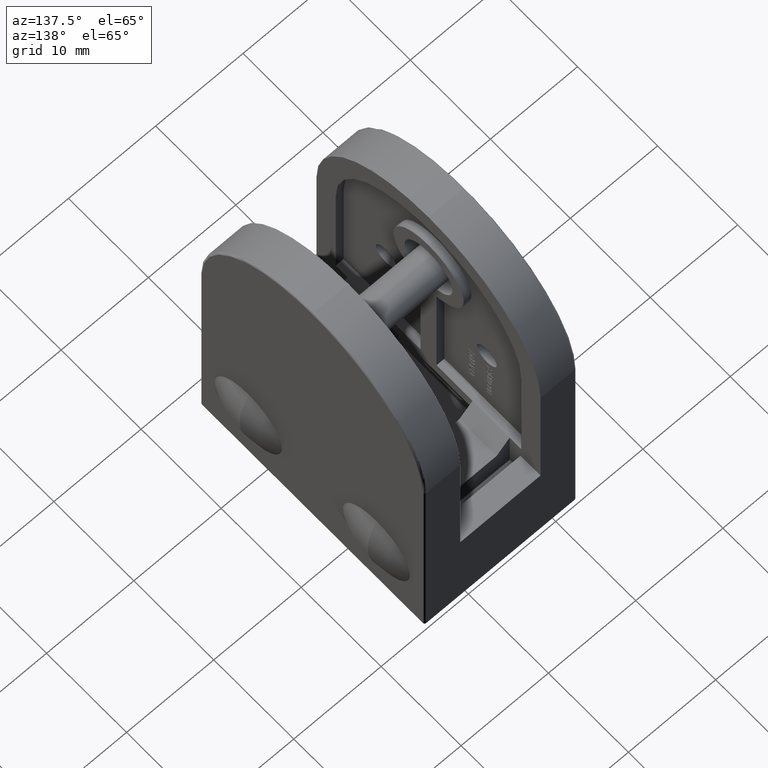
[diagram: clean part render]
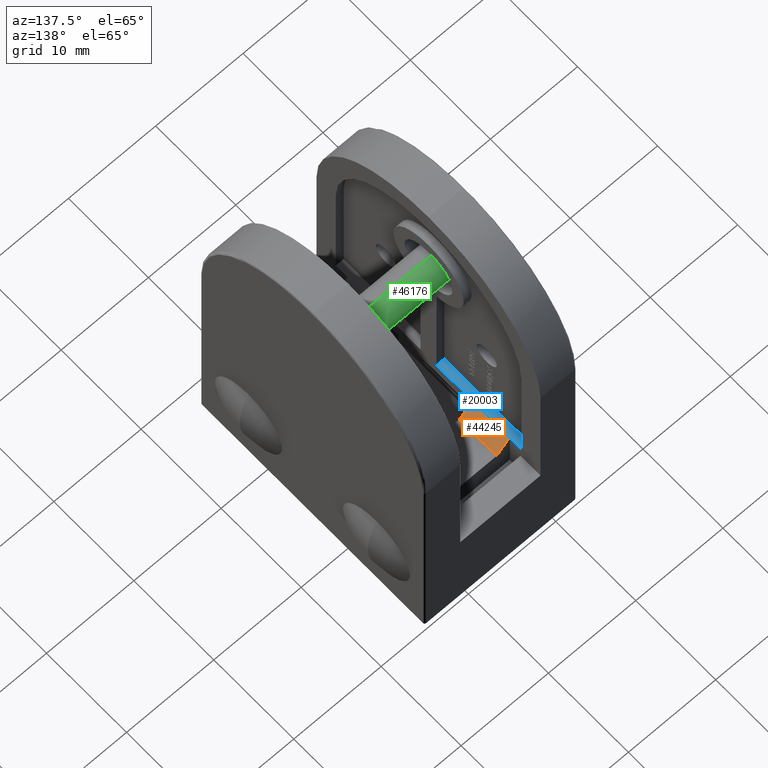
[diagram: same view with three faces highlighted in distinct colors, each labeled with its STEP entity id]
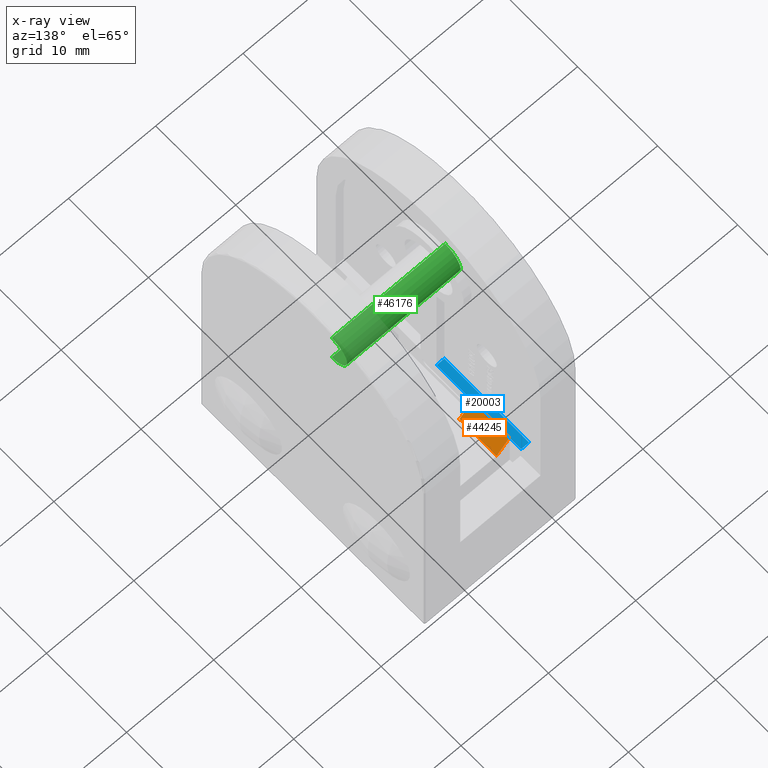
[diagram: x-ray of the same camera — body ghosted, the three highlighted faces saturated]
A machine part, auxiliary view with three faces highlighted in distinct colors.
The next image is the same camera in x-ray (body ghosted, the three faces saturated) — at least one of them is partly hidden behind the body in this view.
Their STEP definitions:

[orange] entity #44245 — the highlighted planar face has unit normal (0.7071, 0, 0.7071).
#759 = VECTOR ( 'NONE', #50283, 1000.000000000000000 ) ;
#1492 = VERTEX_POINT ( 'NONE', #10650 ) ;
#2686 = DIRECTION ( 'NONE',  ( -0.7071067811865459100, -0.0000000000000000000, 0.7071067811865491300 ) ) ;
#3960 = EDGE_LOOP ( 'NONE', ( #11854, #24152, #32381, #44364 ) ) ;
#4111 = DIRECTION ( 'NONE',  ( 0.7071067811865491300, 0.0000000000000000000, 0.7071067811865459100 ) ) ;
#4366 = VERTEX_POINT ( 'NONE', #44944 ) ;
#8853 = VECTOR ( 'NONE', #18639, 1000.000000000000000 ) ;
#9811 = CARTESIAN_POINT ( 'NONE',  ( 5.599999999999998800, 5.499999999999999100, 10.50000000000000000 ) ) ;
#10548 = AXIS2_PLACEMENT_3D ( 'NONE', #15696, #4111, #48399 ) ;
#10650 = CARTESIAN_POINT ( 'NONE',  ( 4.099999999999999600, 5.499999999999999100, 12.00000000000000000 ) ) ;
#11854 = ORIENTED_EDGE ( 'NONE', *, *, #34140, .F. ) ;
#14445 = CARTESIAN_POINT ( 'NONE',  ( 4.099999999999997900, 5.499999999999999100, 12.00000000000000200 ) ) ;
#15610 = EDGE_CURVE ( 'NONE', #48800, #4366, #40041, .T. ) ;
#15696 = CARTESIAN_POINT ( 'NONE',  ( 4.099999999999997900, 11.59999999999999400, 12.00000000000000200 ) ) ;
#16292 = LINE ( 'NONE', #44870, #44639 ) ;
#18639 = DIRECTION ( 'NONE',  ( 0.0000000000000000000, 1.000000000000000000, 0.0000000000000000000 ) ) ;
#22467 = CARTESIAN_POINT ( 'NONE',  ( 4.099999999999999600, 10.14999999999999900, 12.00000000000000000 ) ) ;
#23875 = FACE_OUTER_BOUND ( 'NONE', #3960, .T. ) ;
#24152 = ORIENTED_EDGE ( 'NONE', *, *, #15610, .T. ) ;
#25955 = LINE ( 'NONE', #38583, #8853 ) ;
#26936 = LINE ( 'NONE', #14445, #43607 ) ;
#30643 = CARTESIAN_POINT ( 'NONE',  ( 5.599999999999998800, 3.378679656440356700, 10.50000000000000000 ) ) ;
#32381 = ORIENTED_EDGE ( 'NONE', *, *, #47180, .F. ) ;
#34140 = EDGE_CURVE ( 'NONE', #48800, #1492, #26936, .T. ) ;
#35292 = PLANE ( 'NONE',  #10548 ) ;
#38583 = CARTESIAN_POINT ( 'NONE',  ( 4.099999999999997900, 10.14999999999999900, 12.00000000000000200 ) ) ;
#39810 = EDGE_CURVE ( 'NONE', #1492, #42066, #25955, .T. ) ;
#40041 = LINE ( 'NONE', #30643, #759 ) ;
#42066 = VERTEX_POINT ( 'NONE', #22467 ) ;
#43607 = VECTOR ( 'NONE', #2686, 1000.000000000000000 ) ;
#44245 = ADVANCED_FACE ( 'NONE', ( #23875 ), #35292, .T. ) ;
#44364 = ORIENTED_EDGE ( 'NONE', *, *, #39810, .F. ) ;
#44639 = VECTOR ( 'NONE', #45359, 1000.000000000000000 ) ;
#44870 = CARTESIAN_POINT ( 'NONE',  ( 4.099999999999997900, 10.14999999999999900, 12.00000000000000200 ) ) ;
#44944 = CARTESIAN_POINT ( 'NONE',  ( 5.599999999999998800, 10.14999999999999900, 10.50000000000000000 ) ) ;
#45359 = DIRECTION ( 'NONE',  ( 0.7071067811865459100, 0.0000000000000000000, -0.7071067811865491300 ) ) ;
#47180 = EDGE_CURVE ( 'NONE', #42066, #4366, #16292, .T. ) ;
#48399 = DIRECTION ( 'NONE',  ( 0.0000000000000000000, -1.000000000000000000, 0.0000000000000000000 ) ) ;
#48800 = VERTEX_POINT ( 'NONE', #9811 ) ;
#50283 = DIRECTION ( 'NONE',  ( 0.0000000000000000000, 1.000000000000000000, 0.0000000000000000000 ) ) ;

[blue] entity #20003 — the highlighted planar face has unit normal (0, 0, -1).
#1128 = ORIENTED_EDGE ( 'NONE', *, *, #14142, .F. ) ;
#1492 = VERTEX_POINT ( 'NONE', #10650 ) ;
#6591 = ORIENTED_EDGE ( 'NONE', *, *, #36724, .F. ) ;
#6791 = LINE ( 'NONE', #13372, #19526 ) ;
#7011 = VECTOR ( 'NONE', #39677, 1000.000000000000000 ) ;
#7147 = EDGE_CURVE ( 'NONE', #42066, #32089, #30691, .T. ) ;
#8089 = CARTESIAN_POINT ( 'NONE',  ( 3.199999999999999700, 11.59999999999999400, 12.00000000000000200 ) ) ;
#8853 = VECTOR ( 'NONE', #18639, 1000.000000000000000 ) ;
#8950 = CARTESIAN_POINT ( 'NONE',  ( 4.099999999999999600, 11.59999999999999400, 12.00000000000000200 ) ) ;
#9281 = VECTOR ( 'NONE', #41741, 1000.000000000000000 ) ;
#9972 = DIRECTION ( 'NONE',  ( -0.0000000000000000000, 1.000000000000000000, -0.0000000000000000000 ) ) ;
#10650 = CARTESIAN_POINT ( 'NONE',  ( 4.099999999999999600, 5.499999999999999100, 12.00000000000000000 ) ) ;
#12385 = CARTESIAN_POINT ( 'NONE',  ( 3.199999999999999700, 11.59999999999999400, 12.00000000000000200 ) ) ;
#13372 = CARTESIAN_POINT ( 'NONE',  ( 4.099999999999999600, 11.59999999999999400, 12.00000000000000200 ) ) ;
#14142 = EDGE_CURVE ( 'NONE', #44362, #19963, #50573, .T. ) ;
#17030 = ORIENTED_EDGE ( 'NONE', *, *, #43904, .T. ) ;
#18639 = DIRECTION ( 'NONE',  ( 0.0000000000000000000, 1.000000000000000000, 0.0000000000000000000 ) ) ;
#18969 = DIRECTION ( 'NONE',  ( -1.000000000000000000, 0.0000000000000000000, 0.0000000000000000000 ) ) ;
#19211 = AXIS2_PLACEMENT_3D ( 'NONE', #50622, #39272, #18969 ) ;
#19526 = VECTOR ( 'NONE', #9972, 1000.000000000000000 ) ;
#19963 = VERTEX_POINT ( 'NONE', #8089 ) ;
#20003 = ADVANCED_FACE ( 'NONE', ( #22732 ), #31333, .F. ) ;
#20358 = DIRECTION ( 'NONE',  ( 1.000000000000000000, -0.0000000000000000000, -0.0000000000000000000 ) ) ;
#20488 = LINE ( 'NONE', #45173, #23589 ) ;
#22467 = CARTESIAN_POINT ( 'NONE',  ( 4.099999999999999600, 10.14999999999999900, 12.00000000000000000 ) ) ;
#22732 = FACE_OUTER_BOUND ( 'NONE', #36632, .T. ) ;
#23589 = VECTOR ( 'NONE', #37250, 1000.000000000000000 ) ;
#24991 = CARTESIAN_POINT ( 'NONE',  ( 3.199999999999999700, 0.9999999999999991100, 12.00000000000000200 ) ) ;
#25618 = ORIENTED_EDGE ( 'NONE', *, *, #39810, .T. ) ;
#25955 = LINE ( 'NONE', #38583, #8853 ) ;
#26205 = VERTEX_POINT ( 'NONE', #49328 ) ;
#29318 = CARTESIAN_POINT ( 'NONE',  ( 4.099999999999999600, 11.59999999999999400, 12.00000000000000200 ) ) ;
#30691 = LINE ( 'NONE', #29318, #9281 ) ;
#30832 = CARTESIAN_POINT ( 'NONE',  ( 3.199999999999999700, 11.59999999999999400, 12.00000000000000200 ) ) ;
#31333 = PLANE ( 'NONE',  #19211 ) ;
#32089 = VERTEX_POINT ( 'NONE', #8950 ) ;
#34771 = VECTOR ( 'NONE', #20358, 1000.000000000000000 ) ;
#36632 = EDGE_LOOP ( 'NONE', ( #17030, #25618, #43431, #6591, #1128, #44937 ) ) ;
#36724 = EDGE_CURVE ( 'NONE', #19963, #32089, #47761, .T. ) ;
#37250 = DIRECTION ( 'NONE',  ( -1.000000000000000000, -0.0000000000000000000, -0.0000000000000000000 ) ) ;
#38583 = CARTESIAN_POINT ( 'NONE',  ( 4.099999999999997900, 10.14999999999999900, 12.00000000000000200 ) ) ;
#38665 = EDGE_CURVE ( 'NONE', #26205, #44362, #20488, .T. ) ;
#39272 = DIRECTION ( 'NONE',  ( -0.0000000000000000000, 0.0000000000000000000, -1.000000000000000000 ) ) ;
#39677 = DIRECTION ( 'NONE',  ( -0.0000000000000000000, 1.000000000000000000, -0.0000000000000000000 ) ) ;
#39810 = EDGE_CURVE ( 'NONE', #1492, #42066, #25955, .T. ) ;
#41741 = DIRECTION ( 'NONE',  ( -0.0000000000000000000, 1.000000000000000000, -0.0000000000000000000 ) ) ;
#42066 = VERTEX_POINT ( 'NONE', #22467 ) ;
#43431 = ORIENTED_EDGE ( 'NONE', *, *, #7147, .T. ) ;
#43904 = EDGE_CURVE ( 'NONE', #26205, #1492, #6791, .T. ) ;
#44362 = VERTEX_POINT ( 'NONE', #24991 ) ;
#44937 = ORIENTED_EDGE ( 'NONE', *, *, #38665, .F. ) ;
#45173 = CARTESIAN_POINT ( 'NONE',  ( 28.16657433038610800, 1.000000000000000000, 12.00000000000000200 ) ) ;
#47761 = LINE ( 'NONE', #30832, #34771 ) ;
#49328 = CARTESIAN_POINT ( 'NONE',  ( 4.099999999999999600, 1.000000000000000000, 12.00000000000000200 ) ) ;
#50573 = LINE ( 'NONE', #12385, #7011 ) ;
#50622 = CARTESIAN_POINT ( 'NONE',  ( 3.199999999999999700, 11.59999999999999400, 12.00000000000000200 ) ) ;

[green] entity #46176 — the highlighted cylindrical surface (edge-blend (fillet) strip) has radius 1.925 mm, axis along (1, -0, -0).
#169 = ORIENTED_EDGE ( 'NONE', *, *, #12978, .F. ) ;
#4632 = DIRECTION ( 'NONE',  ( 0.0000000000000000000, 0.0000000000000000000, 1.000000000000000000 ) ) ;
#4807 = CARTESIAN_POINT ( 'NONE',  ( 0.0000000000000000000, 0.0000000000000000000, -6.500000000000000000 ) ) ;
#5303 = VERTEX_POINT ( 'NONE', #27264 ) ;
#5497 = VECTOR ( 'NONE', #25251, 1000.000000000000000 ) ;
#5575 = AXIS2_PLACEMENT_3D ( 'NONE', #4807, #4632, #16386 ) ;
#6347 = CARTESIAN_POINT ( 'NONE',  ( -1.925000000000000000, 0.0000000000000000000, 6.500000000000000000 ) ) ;
#9709 = FACE_OUTER_BOUND ( 'NONE', #15426, .T. ) ;
#9836 = CARTESIAN_POINT ( 'NONE',  ( -1.925000000000000000, 0.0000000000000000000, -6.500000000000000000 ) ) ;
#11226 = AXIS2_PLACEMENT_3D ( 'NONE', #22299, #21792, #50005 ) ;
#11728 = VECTOR ( 'NONE', #21962, 1000.000000000000000 ) ;
#12978 = EDGE_CURVE ( 'NONE', #5303, #37038, #29093, .T. ) ;
#15426 = EDGE_LOOP ( 'NONE', ( #169, #33496, #35411, #22020 ) ) ;
#16386 = DIRECTION ( 'NONE',  ( 1.000000000000000000, 0.0000000000000000000, 0.0000000000000000000 ) ) ;
#19508 = LINE ( 'NONE', #29011, #5497 ) ;
#21239 = EDGE_CURVE ( 'NONE', #22078, #47222, #31321, .T. ) ;
#21780 = EDGE_CURVE ( 'NONE', #37038, #47222, #28876, .T. ) ;
#21792 = DIRECTION ( 'NONE',  ( 0.0000000000000000000, 0.0000000000000000000, 1.000000000000000000 ) ) ;
#21962 = DIRECTION ( 'NONE',  ( -0.0000000000000000000, -0.0000000000000000000, -1.000000000000000000 ) ) ;
#22020 = ORIENTED_EDGE ( 'NONE', *, *, #21780, .F. ) ;
#22078 = VERTEX_POINT ( 'NONE', #23888 ) ;
#22299 = CARTESIAN_POINT ( 'NONE',  ( 0.0000000000000000000, 0.0000000000000000000, 6.500000000000000000 ) ) ;
#23888 = CARTESIAN_POINT ( 'NONE',  ( 1.925000000000000000, 2.357445088358654300E-016, -6.500000000000000000 ) ) ;
#25251 = DIRECTION ( 'NONE',  ( -0.0000000000000000000, -0.0000000000000000000, -1.000000000000000000 ) ) ;
#27264 = CARTESIAN_POINT ( 'NONE',  ( 1.925000000000000000, 2.357445088358654300E-016, 6.500000000000000000 ) ) ;
#28649 = CYLINDRICAL_SURFACE ( 'NONE', #34874, 1.925000000000000000 ) ;
#28876 = LINE ( 'NONE', #45583, #11728 ) ;
#29011 = CARTESIAN_POINT ( 'NONE',  ( 1.925000000000000000, 2.357445088358654300E-016, 6.500000000000000000 ) ) ;
#29093 = CIRCLE ( 'NONE', #11226, 1.925000000000000000 ) ;
#31321 = CIRCLE ( 'NONE', #5575, 1.925000000000000000 ) ;
#33496 = ORIENTED_EDGE ( 'NONE', *, *, #44901, .T. ) ;
#34874 = AXIS2_PLACEMENT_3D ( 'NONE', #45804, #45482, #38054 ) ;
#35411 = ORIENTED_EDGE ( 'NONE', *, *, #21239, .T. ) ;
#37038 = VERTEX_POINT ( 'NONE', #6347 ) ;
#38054 = DIRECTION ( 'NONE',  ( -1.000000000000000000, 0.0000000000000000000, 0.0000000000000000000 ) ) ;
#44901 = EDGE_CURVE ( 'NONE', #5303, #22078, #19508, .T. ) ;
#45482 = DIRECTION ( 'NONE',  ( -0.0000000000000000000, -0.0000000000000000000, -1.000000000000000000 ) ) ;
#45583 = CARTESIAN_POINT ( 'NONE',  ( -1.925000000000000000, 0.0000000000000000000, 6.500000000000000000 ) ) ;
#45804 = CARTESIAN_POINT ( 'NONE',  ( 0.0000000000000000000, 0.0000000000000000000, 6.500000000000000000 ) ) ;
#46176 = ADVANCED_FACE ( 'NONE', ( #9709 ), #28649, .T. ) ;
#47222 = VERTEX_POINT ( 'NONE', #9836 ) ;
#50005 = DIRECTION ( 'NONE',  ( 1.000000000000000000, 0.0000000000000000000, 0.0000000000000000000 ) ) ;